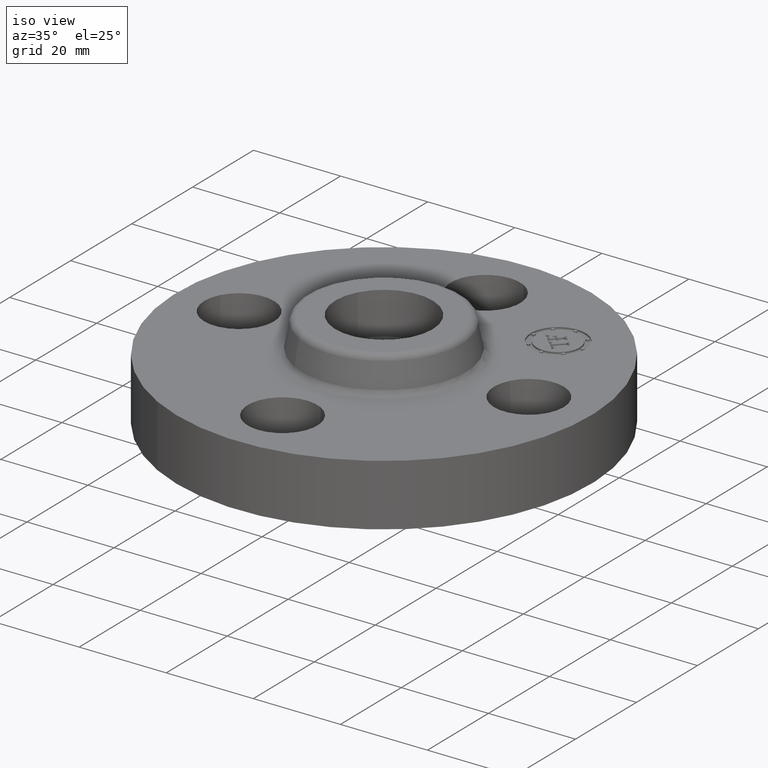
[diagram: clean part render]
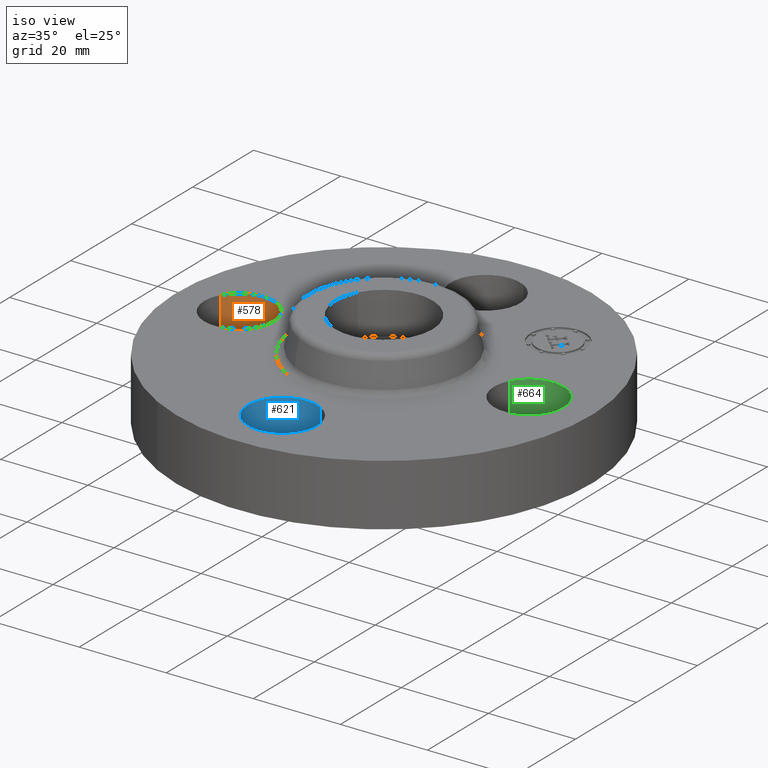
[diagram: same view with three faces highlighted in distinct colors, each labeled with its STEP entity id]
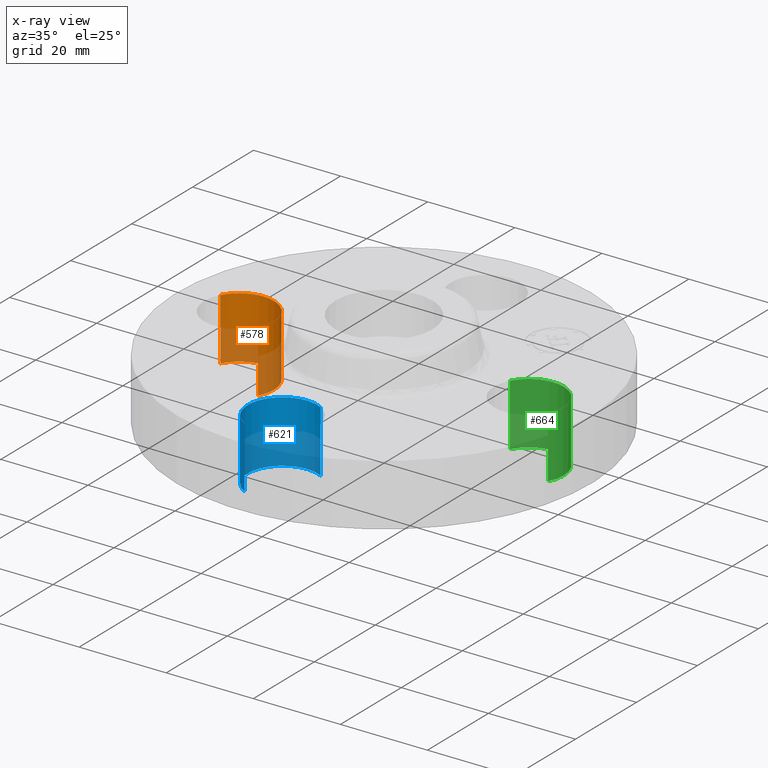
[diagram: x-ray of the same camera — body ghosted, the three highlighted faces saturated]
A machine part, iso view with three faces highlighted in distinct colors.
The next image is the same camera in x-ray (body ghosted, the three faces saturated) — at least one of them is partly hidden behind the body in this view.
Their STEP definitions:

[orange] entity #578 — the highlighted cylindrical surface (partial cylindrical patch) has radius 8.001 mm, axis along (-0, 0, -1).
#265=AXIS2_PLACEMENT_3D('Circle Axis2P3D',#263,#264,$) ;
#551=AXIS2_PLACEMENT_3D('Cylinder Axis2P3D',#548,#549,#550) ;
#569=AXIS2_PLACEMENT_3D('Circle Axis2P3D',#567,#568,$) ;
#258=CARTESIAN_POINT('Vertex',(-1.03356149301,-0.151019044661,0.)) ;
#260=CARTESIAN_POINT('Vertex',(-1.586438507,0.151019044661,6.99353086378E-017)) ;
#263=CARTESIAN_POINT('Axis2P3D Location',(-1.31000000001,0.,0.)) ;
#548=CARTESIAN_POINT('Axis2P3D Location',(-1.31000000001,-1.60428730689E-016,0.556062992128)) ;
#553=CARTESIAN_POINT('Line Origine',(-1.586438507,0.151019044661,0.280000000001)) ;
#557=CARTESIAN_POINT('Vertex',(-1.586438507,0.151019044661,0.560000000002)) ;
#560=CARTESIAN_POINT('Line Origine',(-1.03356149301,-0.151019044661,0.280000000001)) ;
#564=CARTESIAN_POINT('Vertex',(-1.03356149301,-0.151019044661,0.560000000002)) ;
#567=CARTESIAN_POINT('Axis2P3D Location',(-1.31000000001,-1.60428730689E-016,0.560000000002)) ;
#264=DIRECTION('Axis2P3D Direction',(0.,0.,-0.0393700787402)) ;
#549=DIRECTION('Axis2P3D Direction',(-0.,0.,-0.0393700787402)) ;
#550=DIRECTION('Axis2P3D XDirection',(0.0345504945626,-0.0188750212049,-0.)) ;
#554=DIRECTION('Vector Direction',(0.,0.,-0.0393700787402)) ;
#561=DIRECTION('Vector Direction',(0.,0.,-0.0393700787402)) ;
#568=DIRECTION('Axis2P3D Direction',(-0.,0.,-0.0393700787402)) ;
#555=VECTOR('Line Direction',#554,0.0393700787402) ;
#562=VECTOR('Line Direction',#561,0.0393700787402) ;
#573=ORIENTED_EDGE('',*,*,#559,.F.) ;
#574=ORIENTED_EDGE('',*,*,#267,.T.) ;
#575=ORIENTED_EDGE('',*,*,#566,.T.) ;
#576=ORIENTED_EDGE('',*,*,#571,.F.) ;
#578=ADVANCED_FACE('PartBody',(#577),#552,.F.) ;
#266=CIRCLE('generated circle',#265,0.315000000001) ;
#570=CIRCLE('generated circle',#569,0.315000000001) ;
#552=CYLINDRICAL_SURFACE('generated cylinder',#551,0.315000000001) ;
#267=EDGE_CURVE('',#261,#259,#266,.T.) ;
#559=EDGE_CURVE('',#261,#558,#556,.F.) ;
#566=EDGE_CURVE('',#259,#565,#563,.F.) ;
#571=EDGE_CURVE('',#558,#565,#570,.T.) ;
#572=EDGE_LOOP('',(#573,#574,#575,#576)) ;
#577=FACE_OUTER_BOUND('',#572,.T.) ;
#556=LINE('Line',#553,#555) ;
#563=LINE('Line',#560,#562) ;
#259=VERTEX_POINT('',#258) ;
#261=VERTEX_POINT('',#260) ;
#558=VERTEX_POINT('',#557) ;
#565=VERTEX_POINT('',#564) ;

[blue] entity #621 — the highlighted cylindrical surface (partial cylindrical patch) has radius 8.001 mm, axis along (0, -0, -1).
#247=AXIS2_PLACEMENT_3D('Circle Axis2P3D',#245,#246,$) ;
#594=AXIS2_PLACEMENT_3D('Cylinder Axis2P3D',#591,#592,#593) ;
#612=AXIS2_PLACEMENT_3D('Circle Axis2P3D',#610,#611,$) ;
#240=CARTESIAN_POINT('Vertex',(0.151019044661,-1.03356149301,0.)) ;
#242=CARTESIAN_POINT('Vertex',(-0.151019044661,-1.586438507,6.99353086378E-017)) ;
#245=CARTESIAN_POINT('Axis2P3D Location',(-1.39870617276E-016,-1.31000000001,0.)) ;
#591=CARTESIAN_POINT('Axis2P3D Location',(-1.99526869207E-016,-1.31000000001,0.556062992128)) ;
#596=CARTESIAN_POINT('Line Origine',(-0.151019044661,-1.586438507,0.280000000001)) ;
#600=CARTESIAN_POINT('Vertex',(-0.151019044661,-1.586438507,0.560000000002)) ;
#603=CARTESIAN_POINT('Line Origine',(0.151019044661,-1.03356149301,0.280000000001)) ;
#607=CARTESIAN_POINT('Vertex',(0.151019044661,-1.03356149301,0.560000000002)) ;
#610=CARTESIAN_POINT('Axis2P3D Location',(-1.99526869207E-016,-1.31000000001,0.560000000002)) ;
#246=DIRECTION('Axis2P3D Direction',(0.,0.,-0.0393700787402)) ;
#592=DIRECTION('Axis2P3D Direction',(0.,-0.,-0.0393700787402)) ;
#593=DIRECTION('Axis2P3D XDirection',(0.0188750212049,0.0345504945626,-0.)) ;
#597=DIRECTION('Vector Direction',(0.,0.,-0.0393700787402)) ;
#604=DIRECTION('Vector Direction',(0.,0.,-0.0393700787402)) ;
#611=DIRECTION('Axis2P3D Direction',(0.,-0.,-0.0393700787402)) ;
#598=VECTOR('Line Direction',#597,0.0393700787402) ;
#605=VECTOR('Line Direction',#604,0.0393700787402) ;
#616=ORIENTED_EDGE('',*,*,#602,.F.) ;
#617=ORIENTED_EDGE('',*,*,#249,.T.) ;
#618=ORIENTED_EDGE('',*,*,#609,.T.) ;
#619=ORIENTED_EDGE('',*,*,#614,.F.) ;
#621=ADVANCED_FACE('PartBody',(#620),#595,.F.) ;
#248=CIRCLE('generated circle',#247,0.315000000001) ;
#613=CIRCLE('generated circle',#612,0.315000000001) ;
#595=CYLINDRICAL_SURFACE('generated cylinder',#594,0.315000000001) ;
#249=EDGE_CURVE('',#243,#241,#248,.T.) ;
#602=EDGE_CURVE('',#243,#601,#599,.F.) ;
#609=EDGE_CURVE('',#241,#608,#606,.F.) ;
#614=EDGE_CURVE('',#601,#608,#613,.T.) ;
#615=EDGE_LOOP('',(#616,#617,#618,#619)) ;
#620=FACE_OUTER_BOUND('',#615,.T.) ;
#599=LINE('Line',#596,#598) ;
#606=LINE('Line',#603,#605) ;
#241=VERTEX_POINT('',#240) ;
#243=VERTEX_POINT('',#242) ;
#601=VERTEX_POINT('',#600) ;
#608=VERTEX_POINT('',#607) ;

[green] entity #664 — the highlighted cylindrical surface (partial cylindrical patch) has radius 8.001 mm, axis along (0, -0, -1).
#225=AXIS2_PLACEMENT_3D('Circle Axis2P3D',#223,#224,$) ;
#637=AXIS2_PLACEMENT_3D('Cylinder Axis2P3D',#634,#635,#636) ;
#655=AXIS2_PLACEMENT_3D('Circle Axis2P3D',#653,#654,$) ;
#218=CARTESIAN_POINT('Vertex',(1.586438507,-0.151019044661,6.99353086378E-017)) ;
#220=CARTESIAN_POINT('Vertex',(1.03356149301,0.151019044661,6.99353086378E-017)) ;
#223=CARTESIAN_POINT('Axis2P3D Location',(1.31000000001,-1.39870617276E-016,0.)) ;
#634=CARTESIAN_POINT('Axis2P3D Location',(1.31000000001,0.,0.556062992128)) ;
#639=CARTESIAN_POINT('Line Origine',(1.03356149301,0.151019044661,0.280000000001)) ;
#643=CARTESIAN_POINT('Vertex',(1.03356149301,0.151019044661,0.560000000002)) ;
#646=CARTESIAN_POINT('Line Origine',(1.586438507,-0.151019044661,0.280000000001)) ;
#650=CARTESIAN_POINT('Vertex',(1.586438507,-0.151019044661,0.560000000002)) ;
#653=CARTESIAN_POINT('Axis2P3D Location',(1.31000000001,0.,0.560000000002)) ;
#224=DIRECTION('Axis2P3D Direction',(0.,0.,-0.0393700787402)) ;
#635=DIRECTION('Axis2P3D Direction',(0.,-0.,-0.0393700787402)) ;
#636=DIRECTION('Axis2P3D XDirection',(0.0345504945626,-0.0188750212049,0.)) ;
#640=DIRECTION('Vector Direction',(0.,0.,-0.0393700787402)) ;
#647=DIRECTION('Vector Direction',(0.,0.,-0.0393700787402)) ;
#654=DIRECTION('Axis2P3D Direction',(0.,-0.,-0.0393700787402)) ;
#641=VECTOR('Line Direction',#640,0.0393700787402) ;
#648=VECTOR('Line Direction',#647,0.0393700787402) ;
#659=ORIENTED_EDGE('',*,*,#645,.F.) ;
#660=ORIENTED_EDGE('',*,*,#227,.T.) ;
#661=ORIENTED_EDGE('',*,*,#652,.T.) ;
#662=ORIENTED_EDGE('',*,*,#657,.F.) ;
#664=ADVANCED_FACE('PartBody',(#663),#638,.F.) ;
#226=CIRCLE('generated circle',#225,0.315000000001) ;
#656=CIRCLE('generated circle',#655,0.315000000001) ;
#638=CYLINDRICAL_SURFACE('generated cylinder',#637,0.315000000001) ;
#227=EDGE_CURVE('',#221,#219,#226,.T.) ;
#645=EDGE_CURVE('',#221,#644,#642,.F.) ;
#652=EDGE_CURVE('',#219,#651,#649,.F.) ;
#657=EDGE_CURVE('',#644,#651,#656,.T.) ;
#658=EDGE_LOOP('',(#659,#660,#661,#662)) ;
#663=FACE_OUTER_BOUND('',#658,.T.) ;
#642=LINE('Line',#639,#641) ;
#649=LINE('Line',#646,#648) ;
#219=VERTEX_POINT('',#218) ;
#221=VERTEX_POINT('',#220) ;
#644=VERTEX_POINT('',#643) ;
#651=VERTEX_POINT('',#650) ;